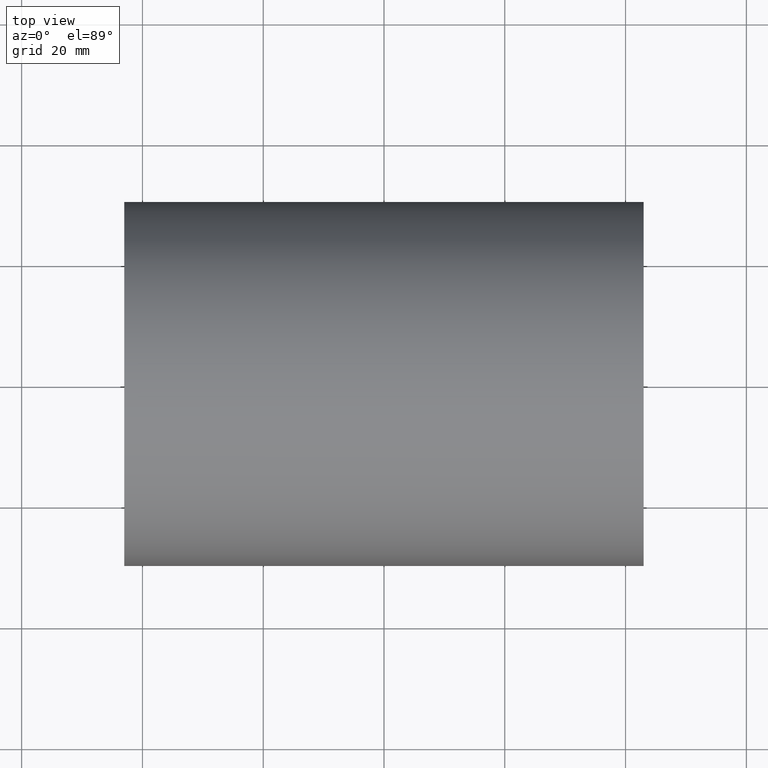
[diagram: clean part render]
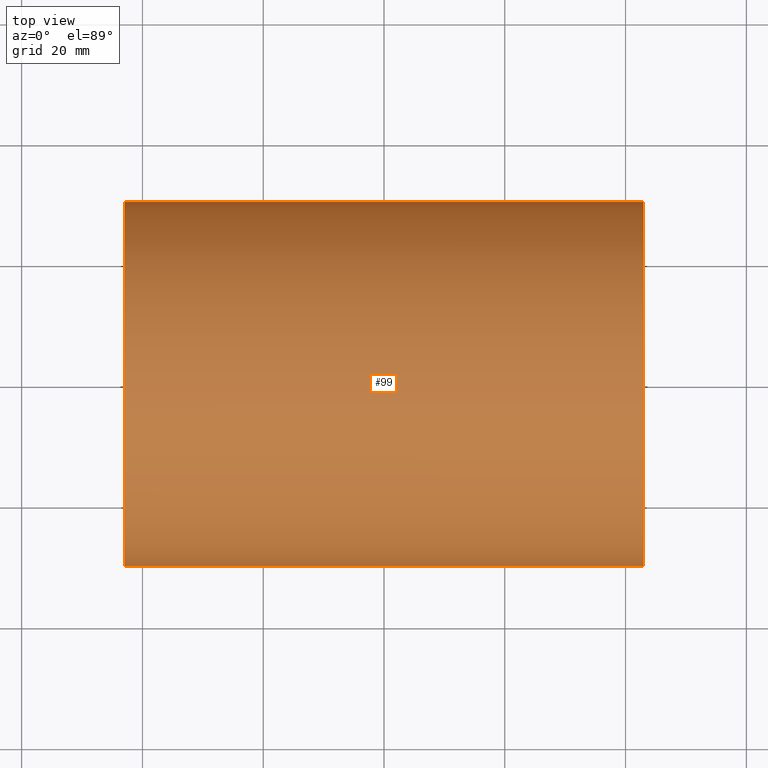
[diagram: same view with one face highlighted and labeled with its STEP entity id]
A machine part, top view. The second image highlights one B-rep face of the part: STEP entity #99.
In plain terms, the highlighted cylindrical surface (partial cylindrical patch) has radius 30.15 mm, axis along (1, 0, -0).
Its self-contained STEP definition (entity closure, byte-faithful):
#6 = VERTEX_POINT ( 'NONE', #74 ) ;
#12 = DIRECTION ( 'NONE',  ( 1.000000000000000000, 3.061616997868382648E-16, -0.000000000000000000 ) ) ;
#22 = VERTEX_POINT ( 'NONE', #160 ) ;
#24 = DIRECTION ( 'NONE',  ( 1.000000000000000000, 3.061616997868382648E-16, -0.000000000000000000 ) ) ;
#31 = VECTOR ( 'NONE', #12, 1000.000000000000000 ) ;
#39 = DIRECTION ( 'NONE',  ( 2.301457347896261609E-16, -1.000000000000000000, 0.000000000000000000 ) ) ;
#40 = AXIS2_PLACEMENT_3D ( 'NONE', #140, #141, #39 ) ;
#42 = DIRECTION ( 'NONE',  ( -2.301457347896261609E-16, 1.000000000000000000, 0.000000000000000000 ) ) ;
#45 = CARTESIAN_POINT ( 'NONE',  ( 43.00000000000000000, -30.14999999999998792, 3.692310099429270397E-15 ) ) ;
#47 = EDGE_CURVE ( 'NONE', #6, #184, #216, .T. ) ;
#51 = ORIENTED_EDGE ( 'NONE', *, *, #89, .T. ) ;
#60 = LINE ( 'NONE', #111, #31 ) ;
#74 = CARTESIAN_POINT ( 'NONE',  ( -42.99999999999999289, -30.15000000000001634, 3.692310099429271974E-15 ) ) ;
#76 = ORIENTED_EDGE ( 'NONE', *, *, #204, .T. ) ;
#78 = FACE_OUTER_BOUND ( 'NONE', #217, .T. ) ;
#82 = CARTESIAN_POINT ( 'NONE',  ( -43.00000000000000000, 30.14999999999998082, 0.000000000000000000 ) ) ;
#89 = EDGE_CURVE ( 'NONE', #6, #133, #143, .T. ) ;
#93 = CIRCLE ( 'NONE', #144, 30.14999999999999858 ) ;
#99 = ADVANCED_FACE ( 'NONE', ( #78 ), #126, .T. ) ;
#111 = CARTESIAN_POINT ( 'NONE',  ( -43.00000000000000000, 30.14999999999998082, 0.000000000000000000 ) ) ;
#126 = CYLINDRICAL_SURFACE ( 'NONE', #163, 30.14999999999999858 ) ;
#133 = VERTEX_POINT ( 'NONE', #45 ) ;
#138 = VECTOR ( 'NONE', #24, 1000.000000000000000 ) ;
#140 = CARTESIAN_POINT ( 'NONE',  ( -43.00000000000000000, -1.665519646840400224E-14, 0.000000000000000000 ) ) ;
#141 = DIRECTION ( 'NONE',  ( -1.000000000000000000, -3.061616997868382648E-16, 0.000000000000000000 ) ) ;
#143 = LINE ( 'NONE', #164, #138 ) ;
#144 = AXIS2_PLACEMENT_3D ( 'NONE', #191, #243, #208 ) ;
#160 = CARTESIAN_POINT ( 'NONE',  ( 42.99999999999999289, 30.15000000000000924, 0.000000000000000000 ) ) ;
#163 = AXIS2_PLACEMENT_3D ( 'NONE', #209, #205, #42 ) ;
#164 = CARTESIAN_POINT ( 'NONE',  ( -42.99999999999999289, -30.15000000000001634, 3.692310099429270397E-15 ) ) ;
#184 = VERTEX_POINT ( 'NONE', #82 ) ;
#191 = CARTESIAN_POINT ( 'NONE',  ( 43.00000000000000000, 9.674709713264084593E-15, 0.000000000000000000 ) ) ;
#204 = EDGE_CURVE ( 'NONE', #133, #22, #93, .T. ) ;
#205 = DIRECTION ( 'NONE',  ( 1.000000000000000000, 3.061616997868382648E-16, -0.000000000000000000 ) ) ;
#208 = DIRECTION ( 'NONE',  ( 2.301457347896261609E-16, -1.000000000000000000, 0.000000000000000000 ) ) ;
#209 = CARTESIAN_POINT ( 'NONE',  ( -43.00000000000000000, -1.665519646840400224E-14, 0.000000000000000000 ) ) ;
#216 = CIRCLE ( 'NONE', #40, 30.14999999999999858 ) ;
#217 = EDGE_LOOP ( 'NONE', ( #247, #51, #76, #230 ) ) ;
#219 = EDGE_CURVE ( 'NONE', #184, #22, #60, .T. ) ;
#230 = ORIENTED_EDGE ( 'NONE', *, *, #219, .F. ) ;
#243 = DIRECTION ( 'NONE',  ( -1.000000000000000000, -3.061616997868382648E-16, 0.000000000000000000 ) ) ;
#247 = ORIENTED_EDGE ( 'NONE', *, *, #47, .F. ) ;